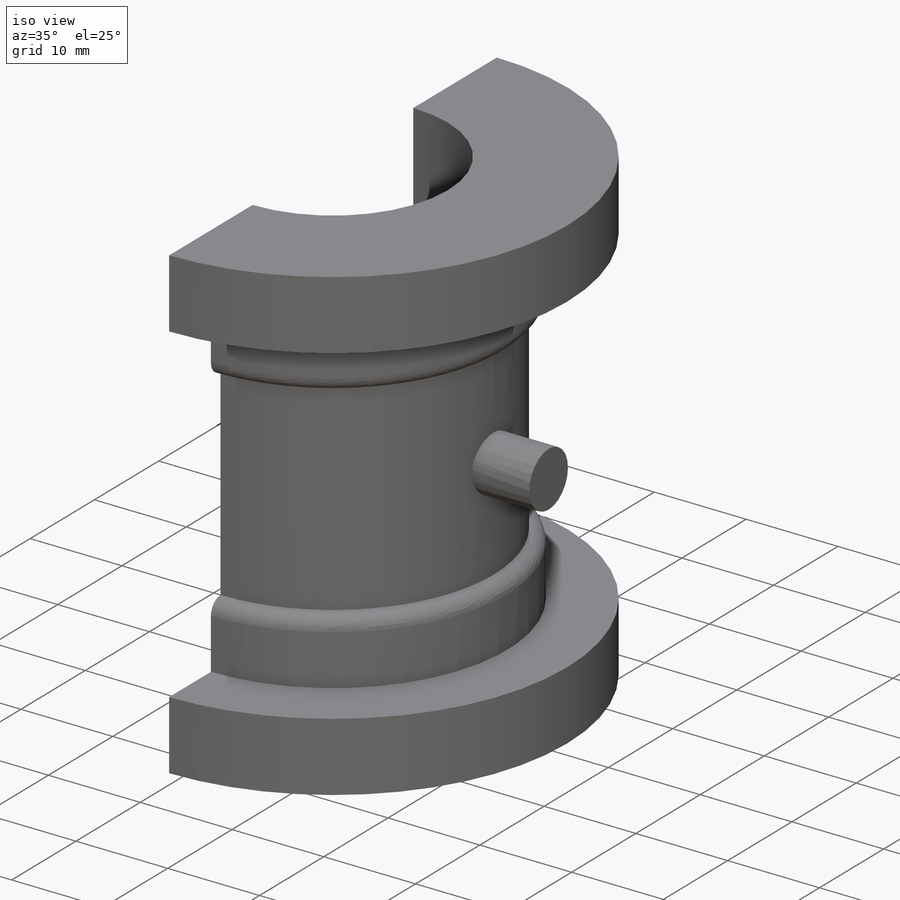
[diagram: iso view]
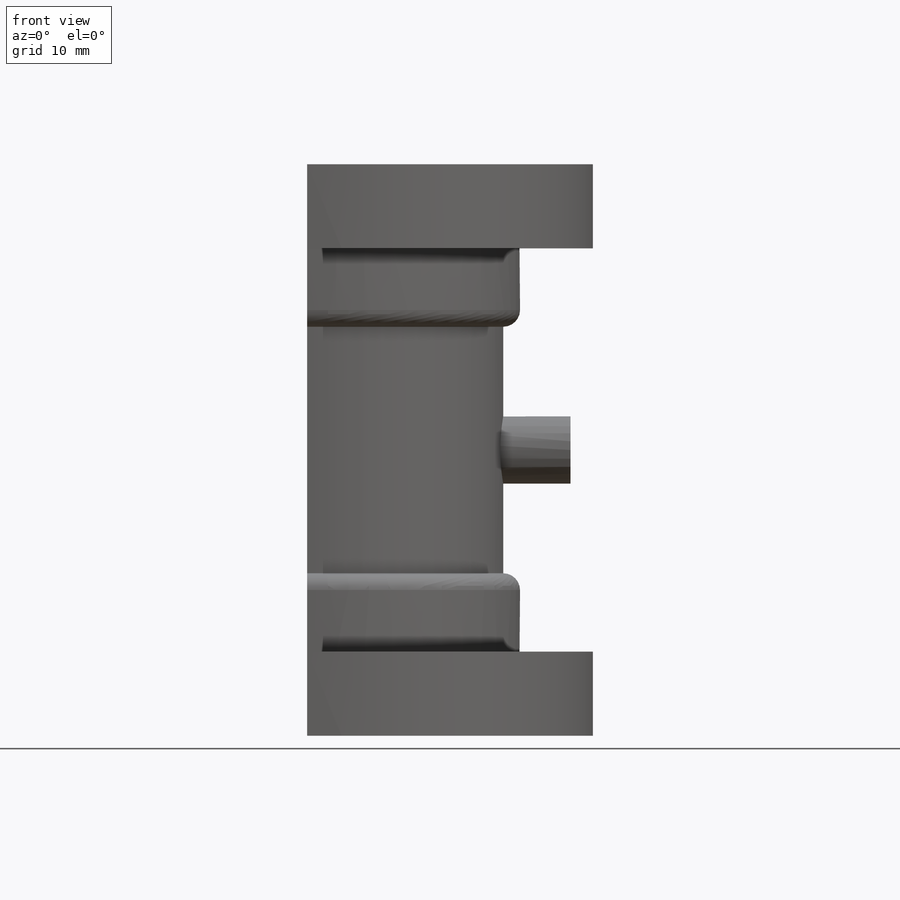
[diagram: front view]
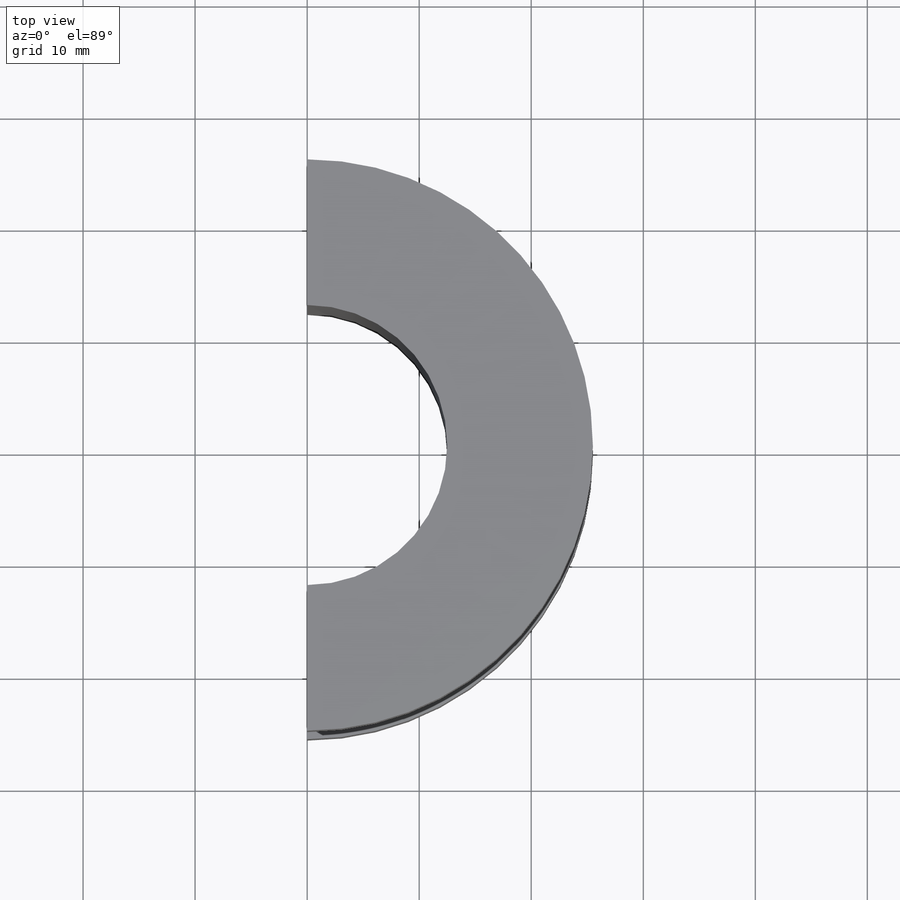
[diagram: top view]
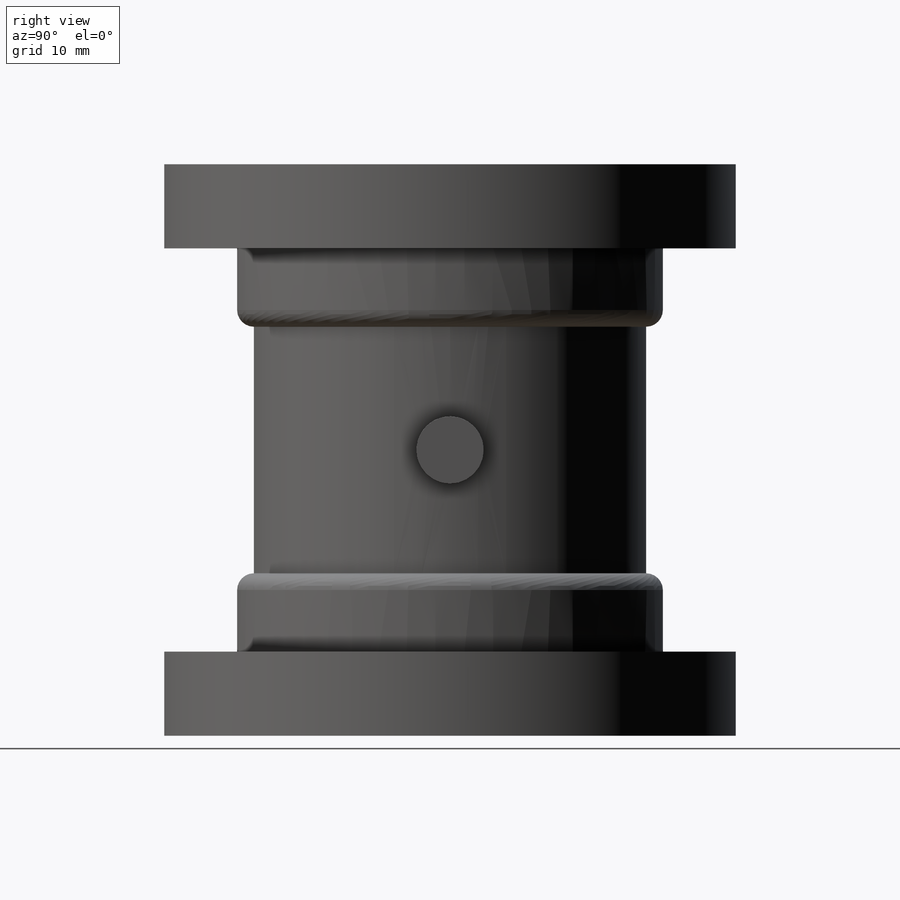
[diagram: right view]
SOLIDWORKS PART (.sldprt)
format: sldprt  version: not decoded by parser v0  size: 216,064 bytes
history: native  units: mm
features: sketch x3, material x1, cut_revolve x1, fillet x1, plane x1, extrude x1 (+12 scaffold rows collapsed)
feature tree (20):
  scaffold x12  (default folders/planes/origin — collapsed)
  material  "Material <not specified>"
  sketch  "Sketch1"  dims[c1.D1=12.5mm c1.D2=25.5mm c2.D1=180.0deg c2.D3=51.0mm c2.D4=10.0mm c2.D7=0.0mm]
  sketch  "Sketch2"  dims[c1.D1=22.0mm c1.D2=36.0mm c1.D3=6.5mm c1.D4=8.0mm c2.D1=22.0mm c2.D2=36.0mm]
  cut_revolve  "Cut-Revolve4"  Angle=360deg
  fillet  "Fillet5"  Radius=1.5mm
  plane  "Plane1"  Offset=23.5mm
  sketch  "Sketch7"  dims[D1=6.0mm D2=6.0mm]
  extrude  "Boss-Extrude2"  [1 undecoded]
decode coverage: 5 of 6 modeling features carry decoded parameters
note: 1 parameter value undecoded
note: suppression state not decoded; provenance and decode notes live in map.json
